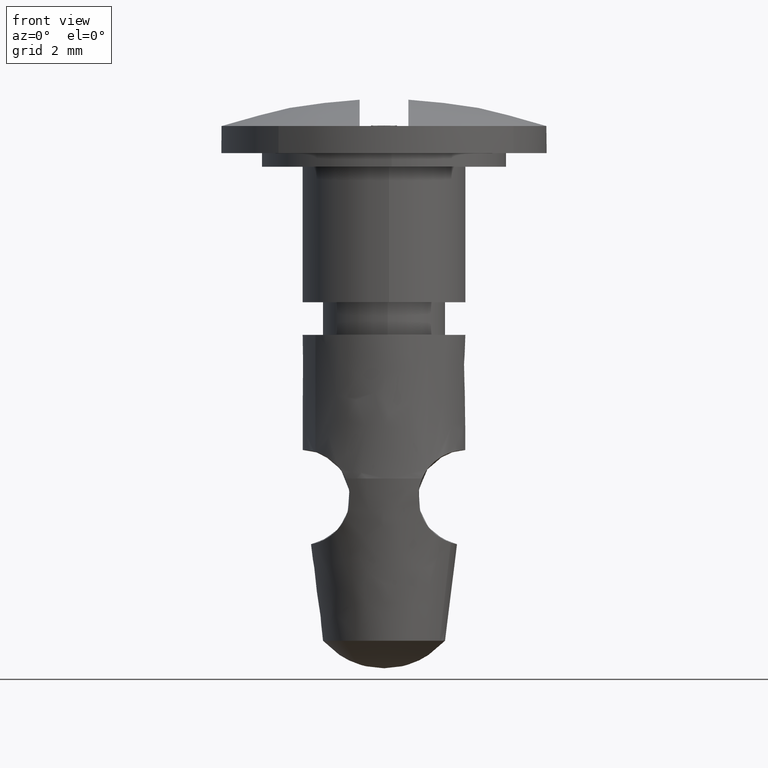
[diagram: clean part render]
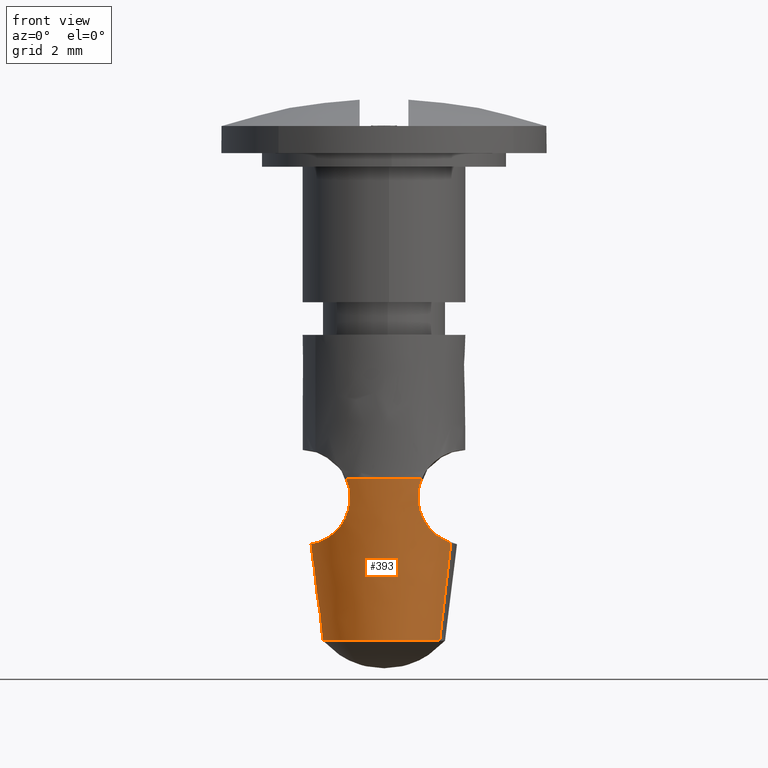
[diagram: same view with one face highlighted and labeled with its STEP entity id]
A machine part, front view. The second image highlights one B-rep face of the part: STEP entity #393.
In plain terms, the highlighted face is a freeform B-spline surface patch.
Its self-contained STEP definition (entity closure, byte-faithful):
#64=CARTESIAN_POINT('',(2.093364208851308,-0.919999280777347,1.015632246897456));
#65=VERTEX_POINT('',#64);
#79=CARTESIAN_POINT('',(-1.893203379756879,1.150926149554763,1.015632906336425));
#80=VERTEX_POINT('',#79);
#96=CARTESIAN_POINT('',(-2.288268809991713,1.386117586484732,4.684014360866409));
#97=VERTEX_POINT('',#96);
#98=CARTESIAN_POINT('',(-1.893203379756879,1.150926149554763,1.015632906336425));
#99=CARTESIAN_POINT('',(-2.288268809991713,1.386117586484732,4.684014360866409));
#100=QUASI_UNIFORM_CURVE('',1,(#98,#99),.UNSPECIFIED.,.F.,.U.);
#101=EDGE_CURVE('',#80,#97,#100,.T.);
#157=CARTESIAN_POINT('',(2.507123758108298,-1.105395749369771,4.633133615413787));
#158=VERTEX_POINT('',#157);
#213=CARTESIAN_POINT('',(2.093364208851308,-0.919999280777347,1.015632246897456));
#214=CARTESIAN_POINT('',(2.507123758108298,-1.105395749369771,4.633133615413787));
#215=QUASI_UNIFORM_CURVE('',1,(#213,#214),.UNSPECIFIED.,.F.,.U.);
#216=EDGE_CURVE('',#65,#158,#215,.T.);
#221=CARTESIAN_POINT('',(-1.860405476918244,1.169363041945367,0.866025384514867));
#222=CARTESIAN_POINT('',(-1.868722666043626,1.155392013250034,0.866025384514867));
#223=CARTESIAN_POINT('',(-3.018426395246659,-0.775854655508400,0.866025384514867));
#224=CARTESIAN_POINT('',(-1.101235869869125,-1.917190525377535,0.866025384514867));
#225=CARTESIAN_POINT('',(0.815954655508409,-3.058526395246670,0.866025384514867));
#226=CARTESIAN_POINT('',(1.957290525377544,-1.141335869869135,0.866025384514867));
#227=CARTESIAN_POINT('',(2.023403351918860,-1.030281019148046,0.866025384514867));
#228=CARTESIAN_POINT('',(2.083282170316960,-0.896643389652555,0.866025384514867));
#229=CARTESIAN_POINT('',(2.090351019459320,-0.880867122386129,0.866025384514867));
#230=CARTESIAN_POINT('',(-2.531626488363981,1.582358980812421,7.153352120230460));
#231=CARTESIAN_POINT('',(-2.542881144476397,1.563453660621636,7.153352120230461));
#232=CARTESIAN_POINT('',(-4.098637531433381,-1.049871201595750,7.153352120230462));
#233=CARTESIAN_POINT('',(-1.504333164918811,-2.594304366514570,7.153352120230460));
#234=CARTESIAN_POINT('',(1.089971201595760,-4.138737531433390,7.153352120230462));
#235=CARTESIAN_POINT('',(2.634404366514580,-1.544433164918820,7.153352120230460));
#236=CARTESIAN_POINT('',(2.723866938078762,-1.394155933556222,7.153352120230461));
#237=CARTESIAN_POINT('',(2.804893772905900,-1.213320131823612,7.153352120230461));
#238=CARTESIAN_POINT('',(2.814459200000135,-1.191971998440505,7.153352120230460));
#246=(BOUNDED_SURFACE()B_SPLINE_SURFACE(2,1,((#221,#230),(#222,#231),(#223,#232),(#224,#233),(#225,#234),(#226,#235),(#227,#236),(#228,#237),(#229,#238)),.UNSPECIFIED.,.F.,.F.,.U.)B_SPLINE_SURFACE_WITH_KNOTS((3,1,2,2,1,3),(2,2),(0.0,0.052025451348522,5.054432811904767,10.056840172461010,10.457032761305520,10.509063081188090),(0.0,6.336528732884831),.UNSPECIFIED.)GEOMETRIC_REPRESENTATION_ITEM()RATIONAL_B_SPLINE_SURFACE(((1.006092227524628,1.006092227524628),(1.003046113762314,1.003046113762314),(0.707106781186548,0.707106781186548),(1.0,1.0),(0.707106781186548,0.707106781186548),(1.0,1.0),(0.976568542494924,0.976568542494924),(0.954327143184220,0.954327143184220),(0.951768168177780,0.951768168177780)))REPRESENTATION_ITEM('')SURFACE());
#247=CARTESIAN_POINT('',(-2.209854201269345,0.0,1.015634587030408));
#248=VERTEX_POINT('',#247);
#249=CARTESIAN_POINT('',(2.093364208851308,-0.919999280777347,1.015632246897456));
#250=CARTESIAN_POINT('',(1.497455793043891,-2.249954089643272,1.015632408927912));
#251=CARTESIAN_POINT('',(0.040099837557386,-2.249954128484227,1.015633166811538));
#252=CARTESIAN_POINT('',(-2.209854229881422,-2.249954188449236,1.015634336878013));
#253=CARTESIAN_POINT('',(-2.209854201269345,0.0,1.015634587030408));
#261=(BOUNDED_CURVE()B_SPLINE_CURVE(2,(#249,#250,#251,#252,#253),.UNSPECIFIED.,.F.,.U.)B_SPLINE_CURVE_WITH_KNOTS((3,2,3),(0.569438178835127,0.750000000000000,1.0),.UNSPECIFIED.)CURVE()GEOMETRIC_REPRESENTATION_ITEM()RATIONAL_B_SPLINE_CURVE((0.882487641269840,0.788458668016805,1.0,0.707106781186547,1.0))REPRESENTATION_ITEM(''));
#262=EDGE_CURVE('',#65,#248,#261,.T.);
#263=ORIENTED_EDGE('',*,*,#262,.F.);
#264=ORIENTED_EDGE('',*,*,#216,.T.);
#265=CARTESIAN_POINT('',(1.436199679755612,-2.655354154192300,7.000002687652030));
#266=VERTEX_POINT('',#265);
#267=CARTESIAN_POINT('',(2.507123758108298,-1.105395749369771,4.633133615413787));
#268=CARTESIAN_POINT('',(2.503807409154755,-1.113122339815773,4.634195411295176));
#269=CARTESIAN_POINT('',(2.500456375651096,-1.120836481411368,4.635278570024575));
#270=CARTESIAN_POINT('',(2.458270593186436,-1.216815103701226,4.649048629136106));
#271=CARTESIAN_POINT('',(2.414753460550745,-1.303698061403755,4.664766341911173));
#272=CARTESIAN_POINT('',(2.321547530087355,-1.469670756053158,4.703525835182365));
#273=CARTESIAN_POINT('',(2.271645482570858,-1.549314597751883,4.726620601317664));
#274=CARTESIAN_POINT('',(2.166483584067499,-1.701979990965737,4.782489065815835));
#275=CARTESIAN_POINT('',(2.111114049488148,-1.775123870140621,4.815323507103821));
#276=CARTESIAN_POINT('',(1.996891034817476,-1.914280233492052,4.893232698784292));
#277=CARTESIAN_POINT('',(1.939252731717024,-1.978848086275699,4.937495946554811));
#278=CARTESIAN_POINT('',(1.825220129472537,-2.098874320203882,5.038116921451176));
#279=CARTESIAN_POINT('',(1.768816685566171,-2.154332627706068,5.094464590212537));
#280=CARTESIAN_POINT('',(1.687036694163581,-2.231342889845461,5.189385794773004));
#281=CARTESIAN_POINT('',(1.660401746726741,-2.255838563356573,5.222611665298038));
#282=CARTESIAN_POINT('',(1.609368939857680,-2.302068479214259,5.291366504927980));
#283=CARTESIAN_POINT('',(1.584860417150390,-2.323907111523198,5.327020780701091));
#284=CARTESIAN_POINT('',(1.514716799387564,-2.385977177249661,5.437822924214959));
#285=CARTESIAN_POINT('',(1.472448037679153,-2.422783482787556,5.516789830392367));
#286=CARTESIAN_POINT('',(1.417375116653032,-2.472305782746608,5.643207289814527));
#287=CARTESIAN_POINT('',(1.400368938704142,-2.487903391565829,5.686845747497456));
#288=CARTESIAN_POINT('',(1.370031859040811,-2.516764937093695,5.775072866681916));
#289=CARTESIAN_POINT('',(1.356609120988963,-2.530108603646945,5.819838703487497));
#290=CARTESIAN_POINT('',(1.321679467183052,-2.567221382925610,5.956028323955151));
#291=CARTESIAN_POINT('',(1.305476403923654,-2.588114869093470,6.049325953218217));
#292=CARTESIAN_POINT('',(1.292707262931318,-2.614277836690897,6.193075976093735));
#293=CARTESIAN_POINT('',(1.290401729290537,-2.622134197769422,6.241764019003541));
#294=CARTESIAN_POINT('',(1.289854390932351,-2.635807863838729,6.338415829364185));
#295=CARTESIAN_POINT('',(1.291579885108330,-2.641673565959565,6.386614850990440));
#296=CARTESIAN_POINT('',(1.302712454208685,-2.656398904126809,6.530832004065116));
#297=CARTESIAN_POINT('',(1.318029779147559,-2.662443873630598,6.626470073987580));
#298=CARTESIAN_POINT('',(1.353453087378812,-2.665044282153295,6.769174094377077));
#299=CARTESIAN_POINT('',(1.367340121838332,-2.664805528553734,6.816505272190888));
#300=CARTESIAN_POINT('',(1.398878961409639,-2.661933116634702,6.909341290802470));
#301=CARTESIAN_POINT('',(1.416574708690307,-2.659305036732072,6.955036435476626));
#302=CARTESIAN_POINT('',(1.436199679755606,-2.655354154192304,7.000002687652033));
#303=B_SPLINE_CURVE_WITH_KNOTS('',3,(#267,#268,#269,#270,#271,#272,#273,#274,#275,#276,#277,#278,#279,#280,#281,#282,#283,#284,#285,#286,#287,#288,#289,#290,#291,#292,#293,#294,#295,#296,#297,#298,#299,#300,#301,#302),.UNSPECIFIED.,.F.,.U.,(4,2,2,2,2,2,2,2,2,2,2,2,2,2,2,2,2,4),(0.622273539973517,0.625000000000002,0.656250000000002,0.687500000000002,0.718750000000002,0.750000000000002,0.781250000000002,0.796875000000002,0.812500000000002,0.843750000000002,0.859375000000001,0.875000000000001,0.906250000000001,0.921875000000001,0.937500000000000,0.968750000000000,0.984375000000000,1.0),.UNSPECIFIED.);
#304=EDGE_CURVE('',#158,#266,#303,.T.);
#305=ORIENTED_EDGE('',*,*,#304,.T.);
#306=CARTESIAN_POINT('',(-1.355999679755594,-2.655354154192300,7.000002687652030));
#307=VERTEX_POINT('',#306);
#308=CARTESIAN_POINT('',(1.436199679755611,-2.655354154192300,7.000002687652030));
#309=CARTESIAN_POINT('',(0.040100000000009,-3.389378394513105,7.000002687652030));
#310=CARTESIAN_POINT('',(-1.355999679755593,-2.655354154192299,7.000002687652030));
#318=(BOUNDED_CURVE()B_SPLINE_CURVE(2,(#308,#309,#310),.UNSPECIFIED.,.F.,.U.)CURVE()GEOMETRIC_REPRESENTATION_ITEM()QUASI_UNIFORM_CURVE()RATIONAL_B_SPLINE_CURVE((1.0,0.885118051397433,1.0))REPRESENTATION_ITEM(''));
#319=EDGE_CURVE('',#266,#307,#318,.T.);
#320=ORIENTED_EDGE('',*,*,#319,.T.);
#321=CARTESIAN_POINT('',(-1.355999679755604,-2.655354154192295,7.000002687652027));
#322=CARTESIAN_POINT('',(-1.316785352904816,-2.663248749233887,6.910151787786023));
#323=CARTESIAN_POINT('',(-1.285578267299150,-2.665857300413901,6.818199967788275));
#324=CARTESIAN_POINT('',(-1.250353756004730,-2.663407252391283,6.677223749841193));
#325=CARTESIAN_POINT('',(-1.240553763082784,-2.661514537764596,6.629720900553097));
#326=CARTESIAN_POINT('',(-1.224889485491663,-2.655668178650680,6.533678987520131));
#327=CARTESIAN_POINT('',(-1.219014594667741,-2.651684868003517,6.484889521103010));
#328=CARTESIAN_POINT('',(-1.207640949443729,-2.636898099857500,6.339404794045286));
#329=CARTESIAN_POINT('',(-1.208209682085359,-2.623339808588781,6.243319848567039));
#330=CARTESIAN_POINT('',(-1.220649806465317,-2.597472015821560,6.100521513315049));
#331=CARTESIAN_POINT('',(-1.226738210329586,-2.587915110425112,6.053145986717893));
#332=CARTESIAN_POINT('',(-1.242805181045358,-2.566784668322692,5.958866483959518));
#333=CARTESIAN_POINT('',(-1.252775814444623,-2.555236495928067,5.912128756691535));
#334=CARTESIAN_POINT('',(-1.287766570428911,-2.518007051228443,5.775273272182479));
#335=CARTESIAN_POINT('',(-1.317978294285689,-2.489592728843532,5.687648857358541));
#336=CARTESIAN_POINT('',(-1.390832616819125,-2.424032094932622,5.519674198409420));
#337=CARTESIAN_POINT('',(-1.433884028597789,-2.386533333031413,5.438898840591370));
#338=CARTESIAN_POINT('',(-1.527808429329171,-2.303427190819819,5.290379435172278));
#339=CARTESIAN_POINT('',(-1.578903691295265,-2.257615351047627,5.221931190538245));
#340=CARTESIAN_POINT('',(-1.660041537544163,-2.181256376485526,5.127571422973081));
#341=CARTESIAN_POINT('',(-1.687933571907502,-2.154431800697685,5.097412288208283));
#342=CARTESIAN_POINT('',(-1.744492121098341,-2.098430019479563,5.040278012158800));
#343=CARTESIAN_POINT('',(-1.773009013925867,-2.069404451960733,5.013436630674725));
#344=CARTESIAN_POINT('',(-1.858804471253623,-1.979128912775142,4.937681864970591));
#345=CARTESIAN_POINT('',(-1.916321211751513,-1.914680404575895,4.893529229357702));
#346=CARTESIAN_POINT('',(-2.001396026344355,-1.811109964407596,4.835435453291849));
#347=CARTESIAN_POINT('',(-2.029632218071966,-1.775335186554191,4.817384361702245));
#348=CARTESIAN_POINT('',(-2.085083673650622,-1.701882821861706,4.784004065912137));
#349=CARTESIAN_POINT('',(-2.112194288580250,-1.664353095312470,4.768729384579254));
#350=CARTESIAN_POINT('',(-2.191431639550111,-1.549358253721339,4.726616682976731));
#351=CARTESIAN_POINT('',(-2.241460463276748,-1.469490250863035,4.703473587701105));
#352=CARTESIAN_POINT('',(-2.311430019438803,-1.344863844986499,4.674384832568147));
#353=CARTESIAN_POINT('',(-2.333908766089634,-1.302517036049931,4.665630707490730));
#354=CARTESIAN_POINT('',(-2.377037500728630,-1.216201512733256,4.649757800753780));
#355=CARTESIAN_POINT('',(-2.397632652313646,-1.172327368937252,4.642660925513752));
#356=CARTESIAN_POINT('',(-2.494743025934280,-0.951293504366971,4.610974529803083));
#357=CARTESIAN_POINT('',(-2.554632342744304,-0.767498119790231,4.597066248494295));
#358=CARTESIAN_POINT('',(-2.605412680483489,-0.529154266269079,4.586247810343089));
#359=CARTESIAN_POINT('',(-2.614365062634275,-0.480965654776700,4.584434172034693));
#360=CARTESIAN_POINT('',(-2.629629046951967,-0.384745069310251,4.581430362017480));
#361=CARTESIAN_POINT('',(-2.635969421776119,-0.336600089126556,4.580233879088555));
#362=CARTESIAN_POINT('',(-2.651162974404412,-0.192063022540981,4.577418341674207));
#363=CARTESIAN_POINT('',(-2.661230807543153,0.000924785799617,4.575690640037053));
#364=CARTESIAN_POINT('',(-2.651014839443568,0.194450647933645,4.577443906040331));
#365=CARTESIAN_POINT('',(-2.635579011483458,0.339802344687373,4.580307213127941));
#366=CARTESIAN_POINT('',(-2.629110700827858,0.388413825354996,4.581529741833246));
#367=CARTESIAN_POINT('',(-2.613711416958329,0.484652977333354,4.584565637040544));
#368=CARTESIAN_POINT('',(-2.604777834832049,0.532370473483567,4.586379381875055));
#369=CARTESIAN_POINT('',(-2.554107956063378,0.768976518700897,4.597193252894869));
#370=CARTESIAN_POINT('',(-2.494472275497607,0.951984811414740,4.611053410072686));
#371=CARTESIAN_POINT('',(-2.378158889139941,1.216614217917490,4.649019808039801));
#372=CARTESIAN_POINT('',(-2.334751494434530,1.303302626210486,4.664694822132782));
#373=CARTESIAN_POINT('',(-2.288268809991713,1.386117586484732,4.684014360866409));
#374=B_SPLINE_CURVE_WITH_KNOTS('',3,(#321,#322,#323,#324,#325,#326,#327,#328,#329,#330,#331,#332,#333,#334,#335,#336,#337,#338,#339,#340,#341,#342,#343,#344,#345,#346,#347,#348,#349,#350,#351,#352,#353,#354,#355,#356,#357,#358,#359,#360,#361,#362,#363,#364,#365,#366,#367,#368,#369,#370,#371,#372,#373),.UNSPECIFIED.,.F.,.U.,(4,2,2,2,2,2,2,2,2,2,2,2,2,2,2,2,2,2,2,2,2,1,2,2,2,2,4),(0.0,0.031250000000000,0.046875000000000,0.062500000000001,0.093750000000001,0.109375000000001,0.125000000000001,0.156250000000001,0.187500000000000,0.218750000000000,0.234375000000000,0.250000000000000,0.281250000000000,0.296875000000000,0.312500000000000,0.343750000000000,0.359375000000000,0.375000000000000,0.437500000000000,0.453125000000000,0.468750000000000,0.500000000000000,0.531250000000000,0.546875000000000,0.562500000000000,0.625000000000000,0.656178886374507),.UNSPECIFIED.);
#375=EDGE_CURVE('',#307,#97,#374,.T.);
#376=ORIENTED_EDGE('',*,*,#375,.T.);
#377=ORIENTED_EDGE('',*,*,#101,.F.);
#378=CARTESIAN_POINT('',(-2.209854201269345,0.0,1.015634587030408));
#379=CARTESIAN_POINT('',(-2.209854110767835,0.619022611063183,1.015633746683416));
#380=CARTESIAN_POINT('',(-1.893203379756880,1.150926149554763,1.015632906336425));
#388=(BOUNDED_CURVE()B_SPLINE_CURVE(2,(#378,#379,#380),.UNSPECIFIED.,.F.,.U.)B_SPLINE_CURVE_WITH_KNOTS((3,3),(0.0,0.087320818325914),.UNSPECIFIED.)CURVE()GEOMETRIC_REPRESENTATION_ITEM()RATIONAL_B_SPLINE_CURVE((1.0,0.897697297804393,0.866859840990168))REPRESENTATION_ITEM(''));
#389=EDGE_CURVE('',#248,#80,#388,.T.);
#390=ORIENTED_EDGE('',*,*,#389,.F.);
#391=EDGE_LOOP('',(#263,#264,#305,#320,#376,#377,#390));
#392=FACE_OUTER_BOUND('',#391,.T.);
#393=ADVANCED_FACE('',(#392),#246,.T.);